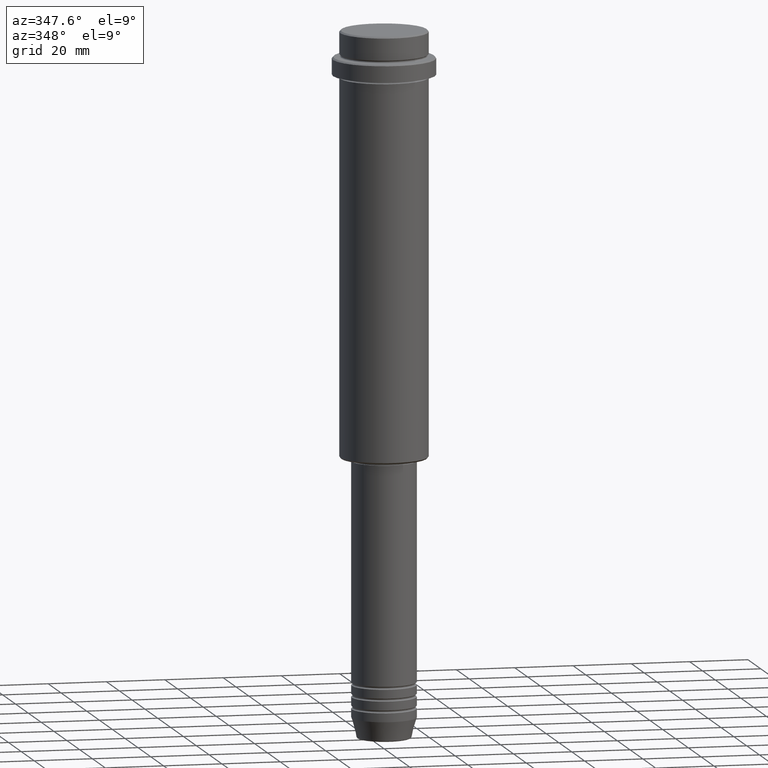
[diagram: clean part render]
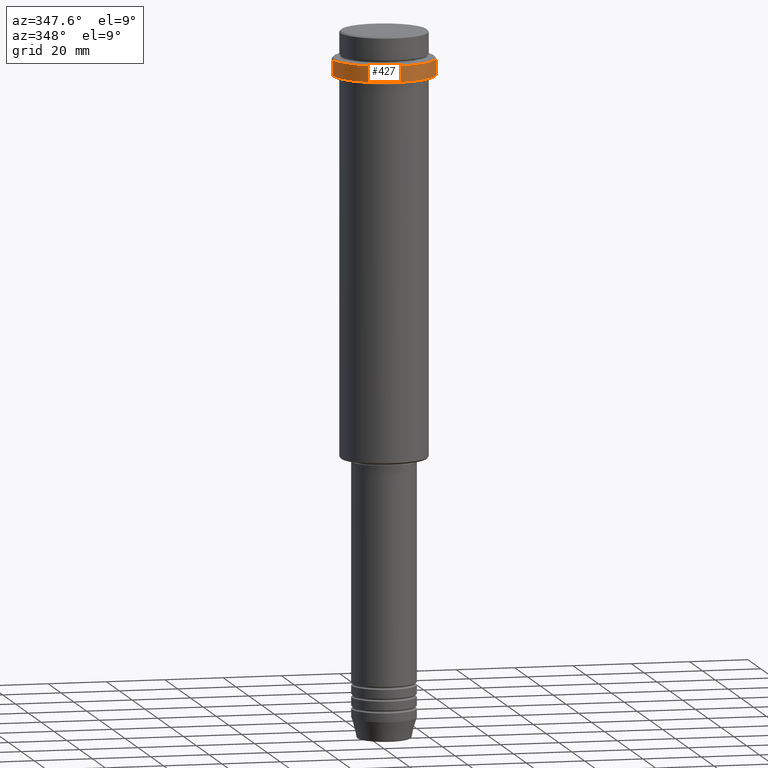
[diagram: same view with one face highlighted and labeled with its STEP entity id]
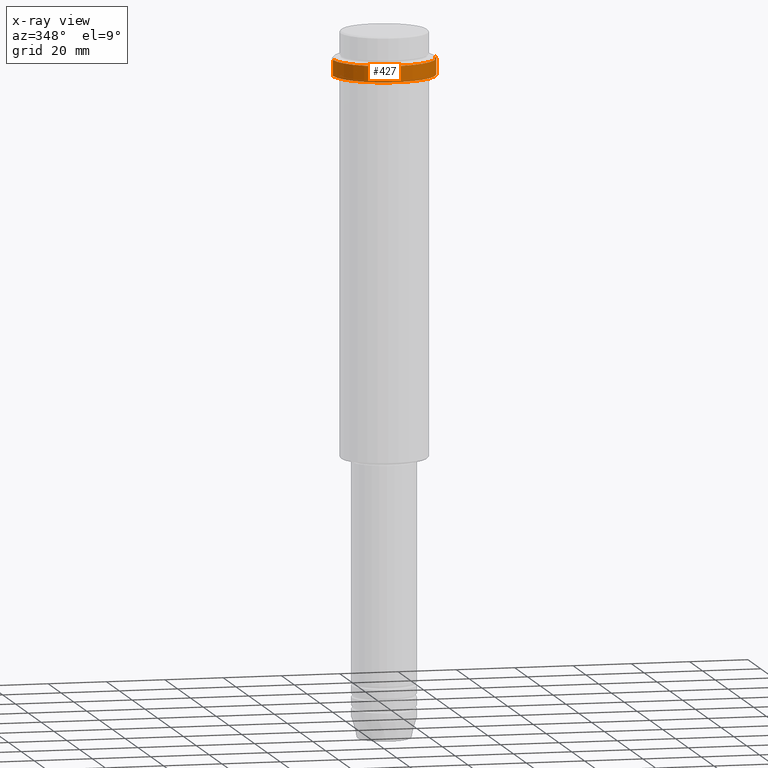
[diagram: x-ray of the same camera — body ghosted, the highlighted face saturated]
A machine part, auxiliary view. The second image highlights one B-rep face of the part: STEP entity #427.
The next image is the same camera in x-ray: the body ghosted, the highlighted face saturated — about 0% of this face is hidden behind the body in this view.
In plain terms, the highlighted cylindrical surface (partial cylindrical patch) has radius 17.5 mm, axis along (-0, -0, 1).
Its self-contained STEP definition (entity closure, byte-faithful):
#19 = VECTOR ( 'NONE', #513, 1000.000000000000000 ) ;
#69 = ORIENTED_EDGE ( 'NONE', *, *, #491, .F. ) ;
#128 = EDGE_CURVE ( 'NONE', #1315, #478, #620, .T. ) ;
#216 = ORIENTED_EDGE ( 'NONE', *, *, #911, .T. ) ;
#228 = ORIENTED_EDGE ( 'NONE', *, *, #128, .T. ) ;
#233 = VERTEX_POINT ( 'NONE', #1312 ) ;
#291 = DIRECTION ( 'NONE',  ( -0.000000000000000000, -0.000000000000000000, 1.000000000000000000 ) ) ;
#297 = DIRECTION ( 'NONE',  ( 0.000000000000000000, 0.000000000000000000, -1.000000000000000000 ) ) ;
#327 = LINE ( 'NONE', #563, #1086 ) ;
#370 = LINE ( 'NONE', #1045, #19 ) ;
#412 = CARTESIAN_POINT ( 'NONE',  ( 0.000000000000000000, 0.000000000000000000, -9.499999999999973355 ) ) ;
#427 = ADVANCED_FACE ( 'NONE', ( #925 ), #1150, .T. ) ;
#458 = EDGE_LOOP ( 'NONE', ( #69, #216, #1032, #228 ) ) ;
#478 = VERTEX_POINT ( 'NONE', #1123 ) ;
#490 = CARTESIAN_POINT ( 'NONE',  ( 0.000000000000000000, 0.000000000000000000, 0.000000000000000000 ) ) ;
#491 = EDGE_CURVE ( 'NONE', #233, #478, #370, .T. ) ;
#513 = DIRECTION ( 'NONE',  ( -0.000000000000000000, -0.000000000000000000, 1.000000000000000000 ) ) ;
#530 = AXIS2_PLACEMENT_3D ( 'NONE', #1022, #815, #1149 ) ;
#535 = CARTESIAN_POINT ( 'NONE',  ( 17.50000000000000000, 0.000000000000000000, -15.00000000000000178 ) ) ;
#563 = CARTESIAN_POINT ( 'NONE',  ( 17.50000000000000000, 0.000000000000000000, 0.000000000000000000 ) ) ;
#596 = AXIS2_PLACEMENT_3D ( 'NONE', #412, #297, #745 ) ;
#620 = CIRCLE ( 'NONE', #596, 17.50000000000000000 ) ;
#745 = DIRECTION ( 'NONE',  ( 1.000000000000000000, 0.000000000000000000, 0.000000000000000000 ) ) ;
#815 = DIRECTION ( 'NONE',  ( -0.000000000000000000, -0.000000000000000000, 1.000000000000000000 ) ) ;
#911 = EDGE_CURVE ( 'NONE', #233, #1129, #1338, .T. ) ;
#925 = FACE_OUTER_BOUND ( 'NONE', #458, .T. ) ;
#983 = DIRECTION ( 'NONE',  ( -0.000000000000000000, -0.000000000000000000, 1.000000000000000000 ) ) ;
#1022 = CARTESIAN_POINT ( 'NONE',  ( 0.000000000000000000, 0.000000000000000000, -15.00000000000000178 ) ) ;
#1032 = ORIENTED_EDGE ( 'NONE', *, *, #1240, .T. ) ;
#1045 = CARTESIAN_POINT ( 'NONE',  ( -17.50000000000000000, 2.143131898507868248E-15, 0.000000000000000000 ) ) ;
#1086 = VECTOR ( 'NONE', #983, 1000.000000000000000 ) ;
#1114 = CARTESIAN_POINT ( 'NONE',  ( 17.50000000000000000, 0.000000000000000000, -9.499999999999973355 ) ) ;
#1123 = CARTESIAN_POINT ( 'NONE',  ( -17.50000000000000000, 2.143131898507868248E-15, -9.499999999999973355 ) ) ;
#1129 = VERTEX_POINT ( 'NONE', #535 ) ;
#1149 = DIRECTION ( 'NONE',  ( 1.000000000000000000, 0.000000000000000000, 0.000000000000000000 ) ) ;
#1150 = CYLINDRICAL_SURFACE ( 'NONE', #1267, 17.50000000000000000 ) ;
#1240 = EDGE_CURVE ( 'NONE', #1129, #1315, #327, .T. ) ;
#1267 = AXIS2_PLACEMENT_3D ( 'NONE', #490, #291, #1355 ) ;
#1312 = CARTESIAN_POINT ( 'NONE',  ( -17.50000000000000000, 2.143131898507868248E-15, -15.00000000000000178 ) ) ;
#1315 = VERTEX_POINT ( 'NONE', #1114 ) ;
#1338 = CIRCLE ( 'NONE', #530, 17.50000000000000000 ) ;
#1355 = DIRECTION ( 'NONE',  ( 1.000000000000000000, 0.000000000000000000, 0.000000000000000000 ) ) ;